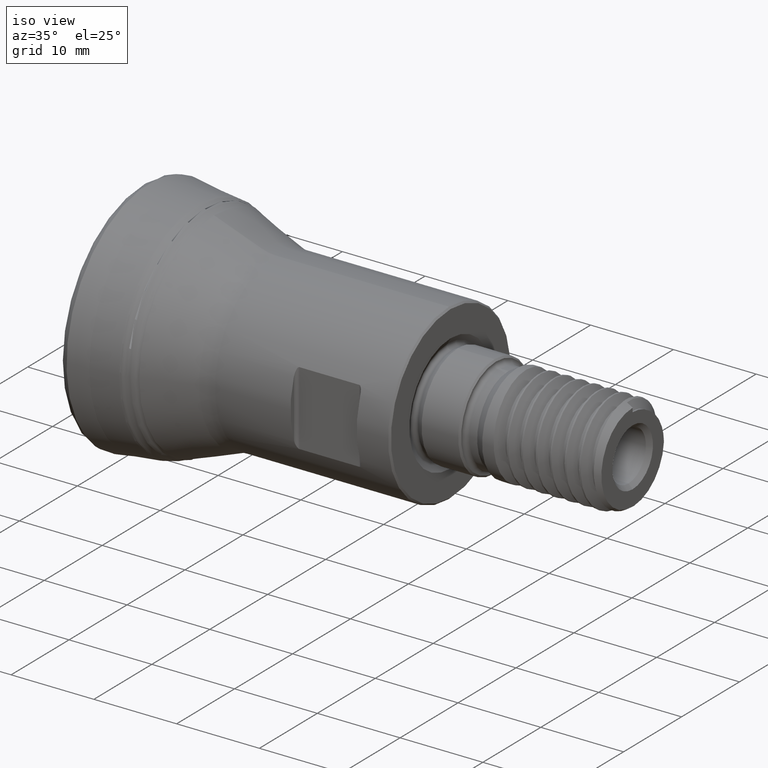
[diagram: clean part render]
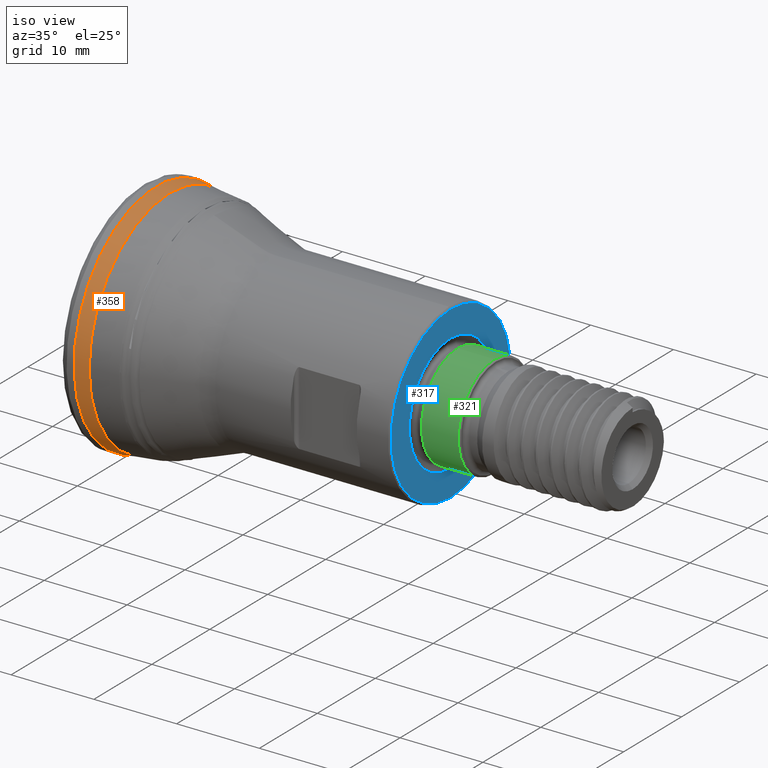
[diagram: same view with three faces highlighted in distinct colors, each labeled with its STEP entity id]
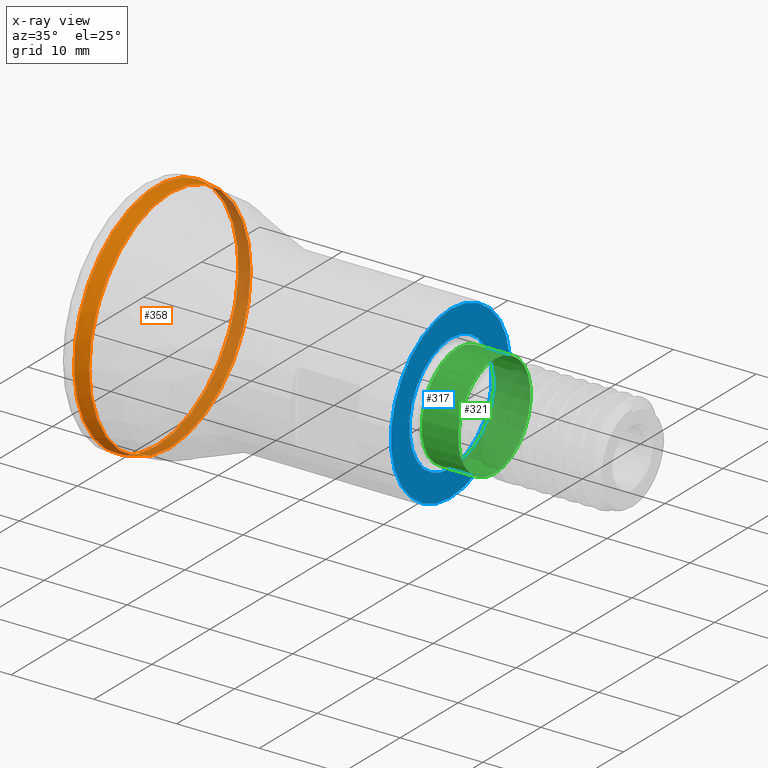
[diagram: x-ray of the same camera — body ghosted, the three highlighted faces saturated]
A machine part, iso view with three faces highlighted in distinct colors.
The next image is the same camera in x-ray (body ghosted, the three faces saturated) — at least one of them is partly hidden behind the body in this view.
Their STEP definitions:

[orange] entity #358 — the highlighted face is a SurfaceOfRevolution surface.
#111=SURFACE_OF_REVOLUTION('',#232,#143);
#143=AXIS1_PLACEMENT('',#2853,#1360);
#232=LINE('',#2852,#254);
#254=VECTOR('',#1359,1.66703794823506);
#358=ADVANCED_FACE('',(#449,#450),#111,.T.);
#449=FACE_BOUND('',#579,.T.);
#450=FACE_BOUND('',#580,.T.);
#579=EDGE_LOOP('',(#779));
#580=EDGE_LOOP('',(#780));
#779=ORIENTED_EDGE('',*,*,#994,.F.);
#780=ORIENTED_EDGE('',*,*,#995,.T.);
#894=VERTEX_POINT('',#2844);
#895=VERTEX_POINT('',#2851);
#994=EDGE_CURVE('',#894,#894,#1057,.T.);
#995=EDGE_CURVE('',#895,#895,#1058,.T.);
#1057=CIRCLE('',#1155,13.9342475133767);
#1058=CIRCLE('',#1156,14.1854234904195);
#1155=AXIS2_PLACEMENT_3D('',#2843,#1354,#1355);
#1156=AXIS2_PLACEMENT_3D('',#2850,#1357,#1358);
#1354=DIRECTION('',(1.,0.,0.));
#1355=DIRECTION('',(0.,0.,-1.));
#1357=DIRECTION('',(1.,0.,0.));
#1358=DIRECTION('',(0.,0.,-1.));
#1359=DIRECTION('',(0.988221313756623,0.152047780260942,-0.017323612638652));
#1360=DIRECTION('',(1.,0.,0.));
#2843=CARTESIAN_POINT('',(4.17859675887511,0.,0.));
#2844=CARTESIAN_POINT('',(4.17859675887511,0.,-13.9342475133767));
#2850=CARTESIAN_POINT('',(2.53119432758811,0.,0.));
#2851=CARTESIAN_POINT('',(2.53119432758811,0.,-14.1854234904195));
#2852=CARTESIAN_POINT('',(2.53119432758811,-13.6024078543618,4.02501430632742));
#2853=CARTESIAN_POINT('',(0.,0.,0.));

[blue] entity #317 — the highlighted planar face has unit normal (1, 0, 0).
#188=PLANE('',#1102);
#317=ADVANCED_FACE('',(#401,#402),#188,.T.);
#401=FACE_BOUND('',#515,.T.);
#402=FACE_BOUND('',#516,.T.);
#515=EDGE_LOOP('',(#660));
#516=EDGE_LOOP('',(#661));
#660=ORIENTED_EDGE('',*,*,#945,.T.);
#661=ORIENTED_EDGE('',*,*,#946,.T.);
#859=VERTEX_POINT('',#1644);
#860=VERTEX_POINT('',#1646);
#945=EDGE_CURVE('',#859,#859,#1033,.T.);
#946=EDGE_CURVE('',#860,#860,#1034,.T.);
#1033=CIRCLE('',#1100,10.3);
#1034=CIRCLE('',#1101,7.11627222808008);
#1100=AXIS2_PLACEMENT_3D('',#1643,#1221,#1222);
#1101=AXIS2_PLACEMENT_3D('',#1645,#1223,#1224);
#1102=AXIS2_PLACEMENT_3D('',#1647,#1225,#1226);
#1221=DIRECTION('',(1.,0.,0.));
#1222=DIRECTION('',(0.,0.,-1.));
#1223=DIRECTION('',(-1.,0.,0.));
#1224=DIRECTION('',(0.,0.,1.));
#1225=DIRECTION('',(1.,0.,0.));
#1226=DIRECTION('',(0.,0.,-1.));
#1643=CARTESIAN_POINT('',(38.1,0.,0.));
#1644=CARTESIAN_POINT('',(38.1,0.,-10.3));
#1645=CARTESIAN_POINT('',(38.1,0.,0.));
#1646=CARTESIAN_POINT('',(38.1,0.,7.11627222808008));
#1647=CARTESIAN_POINT('',(38.1,-10.5,0.));

[green] entity #321 — the highlighted cylindrical surface (bore or boss wall) has radius 6.25 mm, axis along (-1, 0, 0).
#202=CYLINDRICAL_SURFACE('',#1110,6.25);
#321=ADVANCED_FACE('',(#409,#410),#202,.T.);
#409=FACE_BOUND('',#523,.T.);
#410=FACE_BOUND('',#524,.T.);
#523=EDGE_LOOP('',(#668));
#524=EDGE_LOOP('',(#669));
#668=ORIENTED_EDGE('',*,*,#950,.T.);
#669=ORIENTED_EDGE('',*,*,#949,.F.);
#863=VERTEX_POINT('',#1655);
#864=VERTEX_POINT('',#1658);
#949=EDGE_CURVE('',#863,#863,#1037,.T.);
#950=EDGE_CURVE('',#864,#864,#1038,.T.);
#1037=CIRCLE('',#1107,6.25);
#1038=CIRCLE('',#1109,6.25);
#1107=AXIS2_PLACEMENT_3D('',#1654,#1235,#1236);
#1109=AXIS2_PLACEMENT_3D('',#1657,#1239,#1240);
#1110=AXIS2_PLACEMENT_3D('',#1659,#1241,#1242);
#1235=DIRECTION('',(-1.,0.,0.));
#1236=DIRECTION('',(0.,0.,1.));
#1239=DIRECTION('',(-1.,0.,0.));
#1240=DIRECTION('',(0.,0.,-1.));
#1241=DIRECTION('',(-1.,0.,0.));
#1242=DIRECTION('',(0.,0.,1.));
#1654=CARTESIAN_POINT('',(38.9662722280801,0.,0.));
#1655=CARTESIAN_POINT('',(38.9662722280801,0.,6.25));
#1657=CARTESIAN_POINT('',(43.4,0.,0.));
#1658=CARTESIAN_POINT('',(43.4,0.,-6.25));
#1659=CARTESIAN_POINT('',(0.,0.,0.));